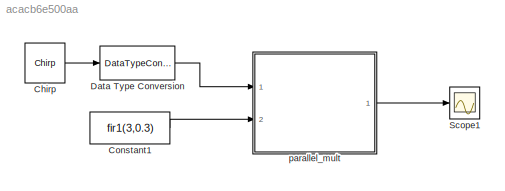
MODEL slx_acacb6e500aa
KIND model
CONFIG AbsTol = auto
CONFIG FixedStep = auto
CONFIG MaxStep = auto
CONFIG MinStep = auto
CONFIG RelTol = 1e-3
CONFIG SampleTimeConstraint = Unconstrained
CONFIG Solver = FixedStepDiscrete
CONFIG SolverMode = SingleTasking
CONFIG SolverName = FixedStepDiscrete
CONFIG StartTime = 0.0
CONFIG StopTime = 10
BLOCK [Reference] Chirp  REF=dspsrcs4/Chirp
  Ports = [0, 1]
  SourceBlock = dspsrcs4/Chirp
  SourceType = Chirp
BLOCK [Constant] Constant1
  OutDataTypeStr = fixdt(1,16,14)
  SampleTime = -1
  Value = fir1(3,0.3)
BLOCK [DataTypeConversion] Data Type Conversion
  OutDataTypeStr = fixdt(1,16,10)
  RndMeth = Floor
  SaturateOnIntegerOverflow = off
BLOCK [Scope] Scope1
  Ports = [1]
  ScopeSpecificationString = C++SS(StrPVP('Location','[188, 390, 512, 629]'),StrPVP('Open','off'),StrPVP('ZoomMode','xonly'),MxPVP('AxesTitles',24,'struct(''axes1'',''%<SignalLabel>'')'),StrPVP('SaveName','ScopeData1'),StrPVP('DataFormat','StructureWithTime'),StrPVP('LimitDataPoints','off'),StrPVP('BlockParamSampleTime','0'),StrPVP('Decimation','1'),StrPVP('BlockParamSampleInput','off'))
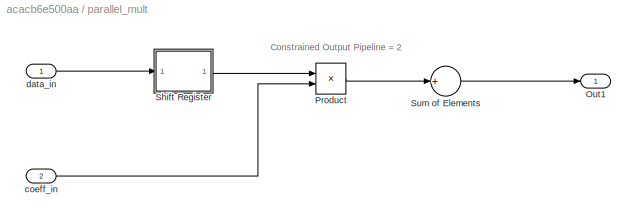
BLOCK [SubSystem] parallel_mult
  Ports = [2, 1]
  RequestExecContextInheritance = off
  Variant = off
BLOCK [Outport] parallel_mult/Out1
  IconDisplay = Port number
BLOCK [Product] parallel_mult/Product
  InputSameDT = off
  OutDataTypeStr = Inherit: Inherit via internal rule
  Ports = [2, 1]
  SaturateOnIntegerOverflow = off
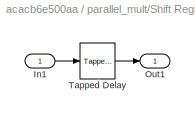
BLOCK [SubSystem] parallel_mult/Shift Register
  Ports = [1, 1]
  RequestExecContextInheritance = off
  Variant = off
BLOCK [Inport] parallel_mult/Shift Register/In1
  IconDisplay = Port number
BLOCK [Outport] parallel_mult/Shift Register/Out1
  IconDisplay = Port number
BLOCK [Reference] parallel_mult/Shift Register/Tapped Delay  REF=simulink/Discrete/Tapped Delay
  Ports = [1, 1]
  SourceBlock = simulink/Discrete/Tapped Delay
  SourceType = Tapped Delay Line
BLOCK [Sum] parallel_mult/Sum of Elements
  InputSameDT = off
  Inputs = +
  OutDataTypeStr = Inherit: Inherit via internal rule
  Ports = [1, 1]
  SaturateOnIntegerOverflow = off
BLOCK [Inport] parallel_mult/coeff_in
  IconDisplay = Port number
  Port = 2
BLOCK [Inport] parallel_mult/data_in
  IconDisplay = Port number
ANNOTATION parallel_mult: Constrained Output Pipeline = 2
LINE Chirp:1 -> Data Type Conversion:1
LINE Constant1:1 -> parallel_mult:2
LINE Data Type Conversion:1 -> parallel_mult:1
LINE parallel_mult/Product:1 -> parallel_mult/Sum of Elements:1
LINE parallel_mult/Shift Register/In1:1 -> parallel_mult/Shift Register/Tapped Delay:1
LINE parallel_mult/Shift Register/Tapped Delay:1 -> parallel_mult/Shift Register/Out1:1
LINE parallel_mult/Shift Register:1 -> parallel_mult/Product:1
LINE parallel_mult/Sum of Elements:1 -> parallel_mult/Out1:1
LINE parallel_mult/coeff_in:1 -> parallel_mult/Product:2
LINE parallel_mult/data_in:1 -> parallel_mult/Shift Register:1
LINE parallel_mult:1 -> Scope1:1
